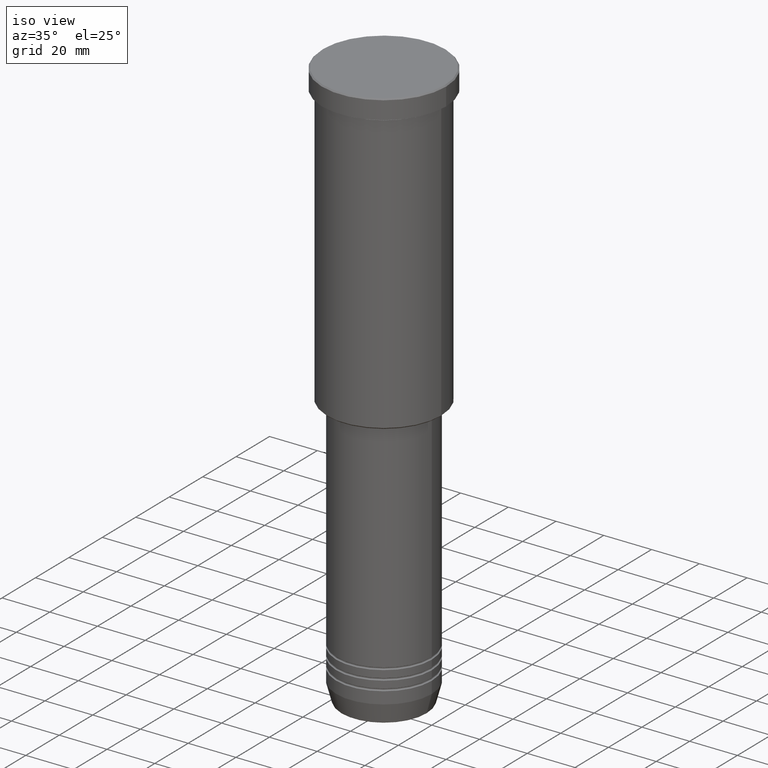
[diagram: clean part render]
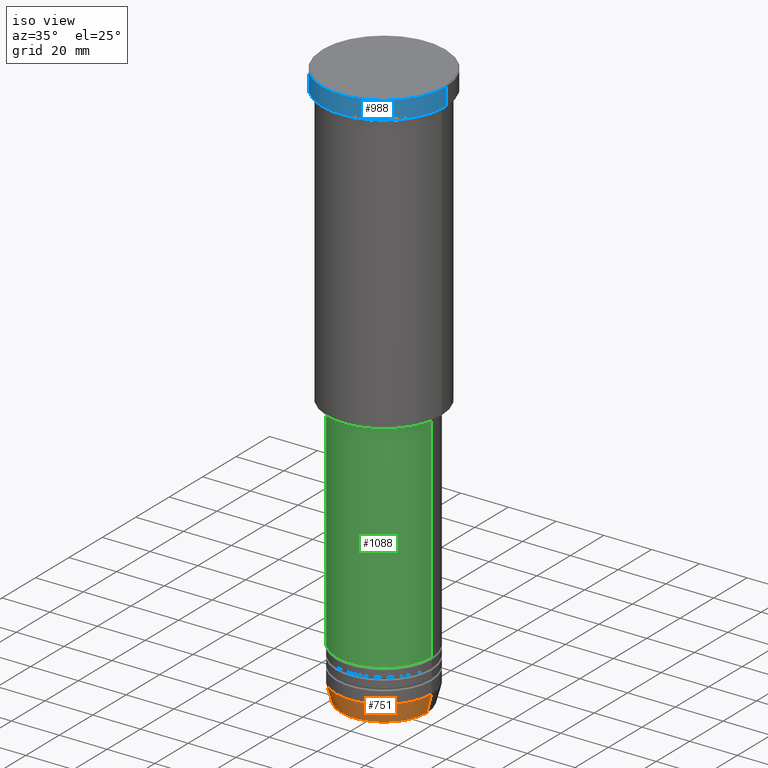
[diagram: same view with three faces highlighted in distinct colors, each labeled with its STEP entity id]
A machine part, iso view with three faces highlighted in distinct colors.
Their STEP definitions:

[orange] entity #751 — the highlighted conical surface has half-angle 15 deg.
#21 = DIRECTION ( 'NONE',  ( -0.2588190451025213501, 3.169619151431772337E-17, 0.9659258262890680902 ) ) ;
#22 = CARTESIAN_POINT ( 'NONE',  ( 20.00000000000000355, 0.000000000000000000, -232.0000000000000000 ) ) ;
#54 = CONICAL_SURFACE ( 'NONE', #718, 20.00000000000000355, 0.2617993877991500740 ) ;
#93 = VECTOR ( 'NONE', #21, 1000.000000000000000 ) ;
#103 = ORIENTED_EDGE ( 'NONE', *, *, #1029, .F. ) ;
#115 = DIRECTION ( 'NONE',  ( -0.000000000000000000, -0.000000000000000000, 1.000000000000000000 ) ) ;
#174 = CARTESIAN_POINT ( 'NONE',  ( 0.000000000000000000, 0.000000000000000000, -232.0000000000000000 ) ) ;
#198 = CARTESIAN_POINT ( 'NONE',  ( -20.00000000000000355, 2.449293598294706907E-15, -232.0000000000000000 ) ) ;
#211 = ORIENTED_EDGE ( 'NONE', *, *, #1172, .T. ) ;
#212 = CARTESIAN_POINT ( 'NONE',  ( 0.000000000000000000, 0.000000000000000000, -239.6294095225512706 ) ) ;
#232 = CARTESIAN_POINT ( 'NONE',  ( 0.000000000000000000, 0.000000000000000000, -232.0000000000000000 ) ) ;
#312 = DIRECTION ( 'NONE',  ( -0.000000000000000000, -0.000000000000000000, 1.000000000000000000 ) ) ;
#318 = CIRCLE ( 'NONE', #737, 17.95570587970607690 ) ;
#385 = DIRECTION ( 'NONE',  ( 0.2588190451025213501, 0.000000000000000000, 0.9659258262890680902 ) ) ;
#386 = ORIENTED_EDGE ( 'NONE', *, *, #613, .T. ) ;
#436 = AXIS2_PLACEMENT_3D ( 'NONE', #232, #312, #594 ) ;
#442 = DIRECTION ( 'NONE',  ( -0.000000000000000000, -0.000000000000000000, 1.000000000000000000 ) ) ;
#494 = CIRCLE ( 'NONE', #436, 20.00000000000000355 ) ;
#505 = ORIENTED_EDGE ( 'NONE', *, *, #509, .F. ) ;
#506 = CARTESIAN_POINT ( 'NONE',  ( 20.00000000000000355, 0.000000000000000000, -232.0000000000000000 ) ) ;
#509 = EDGE_CURVE ( 'NONE', #1085, #602, #640, .T. ) ;
#594 = DIRECTION ( 'NONE',  ( 1.000000000000000000, 0.000000000000000000, 0.000000000000000000 ) ) ;
#602 = VERTEX_POINT ( 'NONE', #198 ) ;
#613 = EDGE_CURVE ( 'NONE', #1085, #666, #318, .T. ) ;
#616 = FACE_OUTER_BOUND ( 'NONE', #730, .T. ) ;
#640 = LINE ( 'NONE', #1004, #93 ) ;
#666 = VERTEX_POINT ( 'NONE', #720 ) ;
#718 = AXIS2_PLACEMENT_3D ( 'NONE', #174, #442, #1090 ) ;
#720 = CARTESIAN_POINT ( 'NONE',  ( 17.95570587970607690, 0.000000000000000000, -239.6294095225512706 ) ) ;
#730 = EDGE_LOOP ( 'NONE', ( #505, #386, #211, #103 ) ) ;
#737 = AXIS2_PLACEMENT_3D ( 'NONE', #212, #115, #750 ) ;
#750 = DIRECTION ( 'NONE',  ( 1.000000000000000000, 0.000000000000000000, 0.000000000000000000 ) ) ;
#751 = ADVANCED_FACE ( 'NONE', ( #616 ), #54, .T. ) ;
#836 = LINE ( 'NONE', #22, #894 ) ;
#894 = VECTOR ( 'NONE', #385, 1000.000000000000000 ) ;
#998 = CARTESIAN_POINT ( 'NONE',  ( -17.95570587970607690, 2.324116685748021371E-15, -239.6294095225512706 ) ) ;
#1000 = VERTEX_POINT ( 'NONE', #506 ) ;
#1004 = CARTESIAN_POINT ( 'NONE',  ( -20.00000000000000355, 2.449293598294706907E-15, -232.0000000000000000 ) ) ;
#1029 = EDGE_CURVE ( 'NONE', #602, #1000, #494, .T. ) ;
#1085 = VERTEX_POINT ( 'NONE', #998 ) ;
#1090 = DIRECTION ( 'NONE',  ( 1.000000000000000000, 0.000000000000000000, 0.000000000000000000 ) ) ;
#1172 = EDGE_CURVE ( 'NONE', #666, #1000, #836, .T. ) ;

[blue] entity #988 — the highlighted cylindrical surface (partial cylindrical patch) has radius 26 mm, axis along (-0, -0, 1).
#7 = VERTEX_POINT ( 'NONE', #153 ) ;
#11 = CARTESIAN_POINT ( 'NONE',  ( 26.00000000000000000, 0.000000000000000000, -7.999999999999992895 ) ) ;
#26 = DIRECTION ( 'NONE',  ( -0.000000000000000000, -0.000000000000000000, 1.000000000000000000 ) ) ;
#33 = ORIENTED_EDGE ( 'NONE', *, *, #537, .F. ) ;
#44 = DIRECTION ( 'NONE',  ( 1.000000000000000000, 0.000000000000000000, 0.000000000000000000 ) ) ;
#65 = ORIENTED_EDGE ( 'NONE', *, *, #994, .T. ) ;
#138 = DIRECTION ( 'NONE',  ( -0.000000000000000000, -0.000000000000000000, 1.000000000000000000 ) ) ;
#153 = CARTESIAN_POINT ( 'NONE',  ( 26.00000000000000000, 0.000000000000000000, -0.4999999999999970024 ) ) ;
#195 = VERTEX_POINT ( 'NONE', #649 ) ;
#216 = EDGE_CURVE ( 'NONE', #7, #195, #1063, .T. ) ;
#338 = AXIS2_PLACEMENT_3D ( 'NONE', #834, #1015, #1132 ) ;
#340 = VECTOR ( 'NONE', #138, 1000.000000000000000 ) ;
#373 = ORIENTED_EDGE ( 'NONE', *, *, #216, .T. ) ;
#378 = VECTOR ( 'NONE', #26, 1000.000000000000000 ) ;
#410 = CARTESIAN_POINT ( 'NONE',  ( 0.000000000000000000, 0.000000000000000000, 0.000000000000000000 ) ) ;
#481 = LINE ( 'NONE', #840, #378 ) ;
#518 = FACE_OUTER_BOUND ( 'NONE', #784, .T. ) ;
#537 = EDGE_CURVE ( 'NONE', #1054, #195, #481, .T. ) ;
#539 = ORIENTED_EDGE ( 'NONE', *, *, #588, .T. ) ;
#545 = AXIS2_PLACEMENT_3D ( 'NONE', #551, #678, #44 ) ;
#551 = CARTESIAN_POINT ( 'NONE',  ( 0.000000000000000000, 0.000000000000000000, -0.4999999999999970024 ) ) ;
#588 = EDGE_CURVE ( 'NONE', #1054, #1126, #962, .T. ) ;
#590 = DIRECTION ( 'NONE',  ( -0.000000000000000000, -0.000000000000000000, 1.000000000000000000 ) ) ;
#609 = CYLINDRICAL_SURFACE ( 'NONE', #1066, 26.00000000000000000 ) ;
#621 = CARTESIAN_POINT ( 'NONE',  ( -26.00000000000000000, 3.184081677783118191E-15, -7.999999999999992895 ) ) ;
#649 = CARTESIAN_POINT ( 'NONE',  ( -26.00000000000000000, 3.184081677783118191E-15, -0.4999999999999970024 ) ) ;
#678 = DIRECTION ( 'NONE',  ( 0.000000000000000000, 0.000000000000000000, -1.000000000000000000 ) ) ;
#692 = LINE ( 'NONE', #782, #340 ) ;
#782 = CARTESIAN_POINT ( 'NONE',  ( 26.00000000000000000, 0.000000000000000000, 0.000000000000000000 ) ) ;
#784 = EDGE_LOOP ( 'NONE', ( #33, #539, #65, #373 ) ) ;
#834 = CARTESIAN_POINT ( 'NONE',  ( 0.000000000000000000, 0.000000000000000000, -7.999999999999992895 ) ) ;
#840 = CARTESIAN_POINT ( 'NONE',  ( -26.00000000000000000, 3.184081677783118191E-15, 0.000000000000000000 ) ) ;
#953 = DIRECTION ( 'NONE',  ( 1.000000000000000000, 0.000000000000000000, 0.000000000000000000 ) ) ;
#962 = CIRCLE ( 'NONE', #338, 26.00000000000000000 ) ;
#988 = ADVANCED_FACE ( 'NONE', ( #518 ), #609, .T. ) ;
#994 = EDGE_CURVE ( 'NONE', #1126, #7, #692, .T. ) ;
#1015 = DIRECTION ( 'NONE',  ( -0.000000000000000000, -0.000000000000000000, 1.000000000000000000 ) ) ;
#1054 = VERTEX_POINT ( 'NONE', #621 ) ;
#1063 = CIRCLE ( 'NONE', #545, 26.00000000000000000 ) ;
#1066 = AXIS2_PLACEMENT_3D ( 'NONE', #410, #590, #953 ) ;
#1126 = VERTEX_POINT ( 'NONE', #11 ) ;
#1132 = DIRECTION ( 'NONE',  ( 1.000000000000000000, 0.000000000000000000, 0.000000000000000000 ) ) ;

[green] entity #1088 — the highlighted cylindrical surface (partial cylindrical patch) has radius 20 mm, axis along (-0, -0, 1).
#8 = DIRECTION ( 'NONE',  ( -0.000000000000000000, -0.000000000000000000, 1.000000000000000000 ) ) ;
#13 = CARTESIAN_POINT ( 'NONE',  ( 20.00000000000000355, 0.000000000000000000, -218.0000000000000000 ) ) ;
#24 = DIRECTION ( 'NONE',  ( 1.000000000000000000, 0.000000000000000000, 0.000000000000000000 ) ) ;
#74 = CIRCLE ( 'NONE', #1182, 20.00000000000000355 ) ;
#97 = AXIS2_PLACEMENT_3D ( 'NONE', #1026, #305, #24 ) ;
#122 = ORIENTED_EDGE ( 'NONE', *, *, #732, .T. ) ;
#161 = DIRECTION ( 'NONE',  ( -0.000000000000000000, -0.000000000000000000, 1.000000000000000000 ) ) ;
#185 = CYLINDRICAL_SURFACE ( 'NONE', #741, 20.00000000000000355 ) ;
#209 = VERTEX_POINT ( 'NONE', #861 ) ;
#246 = LINE ( 'NONE', #523, #566 ) ;
#248 = VERTEX_POINT ( 'NONE', #500 ) ;
#289 = EDGE_CURVE ( 'NONE', #535, #248, #328, .T. ) ;
#305 = DIRECTION ( 'NONE',  ( -0.000000000000000000, -0.000000000000000000, 1.000000000000000000 ) ) ;
#328 = LINE ( 'NONE', #869, #851 ) ;
#353 = FACE_OUTER_BOUND ( 'NONE', #1019, .T. ) ;
#382 = CARTESIAN_POINT ( 'NONE',  ( -20.00000000000000355, 2.449293598294706907E-15, -218.0000000000000000 ) ) ;
#440 = CARTESIAN_POINT ( 'NONE',  ( 0.000000000000000000, 0.000000000000000000, 0.000000000000000000 ) ) ;
#500 = CARTESIAN_POINT ( 'NONE',  ( -20.00000000000000355, 2.449293598294706907E-15, -127.0000000000000000 ) ) ;
#523 = CARTESIAN_POINT ( 'NONE',  ( 20.00000000000000355, 0.000000000000000000, 0.000000000000000000 ) ) ;
#535 = VERTEX_POINT ( 'NONE', #382 ) ;
#544 = DIRECTION ( 'NONE',  ( 1.000000000000000000, 0.000000000000000000, 0.000000000000000000 ) ) ;
#552 = DIRECTION ( 'NONE',  ( -0.000000000000000000, -0.000000000000000000, 1.000000000000000000 ) ) ;
#566 = VECTOR ( 'NONE', #966, 1000.000000000000000 ) ;
#629 = CARTESIAN_POINT ( 'NONE',  ( 0.000000000000000000, 0.000000000000000000, -218.0000000000000000 ) ) ;
#732 = EDGE_CURVE ( 'NONE', #535, #799, #74, .T. ) ;
#741 = AXIS2_PLACEMENT_3D ( 'NONE', #440, #552, #914 ) ;
#783 = ORIENTED_EDGE ( 'NONE', *, *, #1012, .T. ) ;
#799 = VERTEX_POINT ( 'NONE', #13 ) ;
#851 = VECTOR ( 'NONE', #161, 1000.000000000000000 ) ;
#861 = CARTESIAN_POINT ( 'NONE',  ( 20.00000000000000355, 0.000000000000000000, -127.0000000000000000 ) ) ;
#868 = EDGE_CURVE ( 'NONE', #248, #209, #963, .T. ) ;
#869 = CARTESIAN_POINT ( 'NONE',  ( -20.00000000000000355, 2.449293598294706907E-15, 0.000000000000000000 ) ) ;
#914 = DIRECTION ( 'NONE',  ( 1.000000000000000000, 0.000000000000000000, 0.000000000000000000 ) ) ;
#963 = CIRCLE ( 'NONE', #97, 20.00000000000000355 ) ;
#966 = DIRECTION ( 'NONE',  ( -0.000000000000000000, -0.000000000000000000, 1.000000000000000000 ) ) ;
#1010 = ORIENTED_EDGE ( 'NONE', *, *, #868, .F. ) ;
#1012 = EDGE_CURVE ( 'NONE', #799, #209, #246, .T. ) ;
#1019 = EDGE_LOOP ( 'NONE', ( #1113, #122, #783, #1010 ) ) ;
#1026 = CARTESIAN_POINT ( 'NONE',  ( 0.000000000000000000, 0.000000000000000000, -127.0000000000000000 ) ) ;
#1088 = ADVANCED_FACE ( 'NONE', ( #353 ), #185, .T. ) ;
#1113 = ORIENTED_EDGE ( 'NONE', *, *, #289, .F. ) ;
#1182 = AXIS2_PLACEMENT_3D ( 'NONE', #629, #8, #544 ) ;